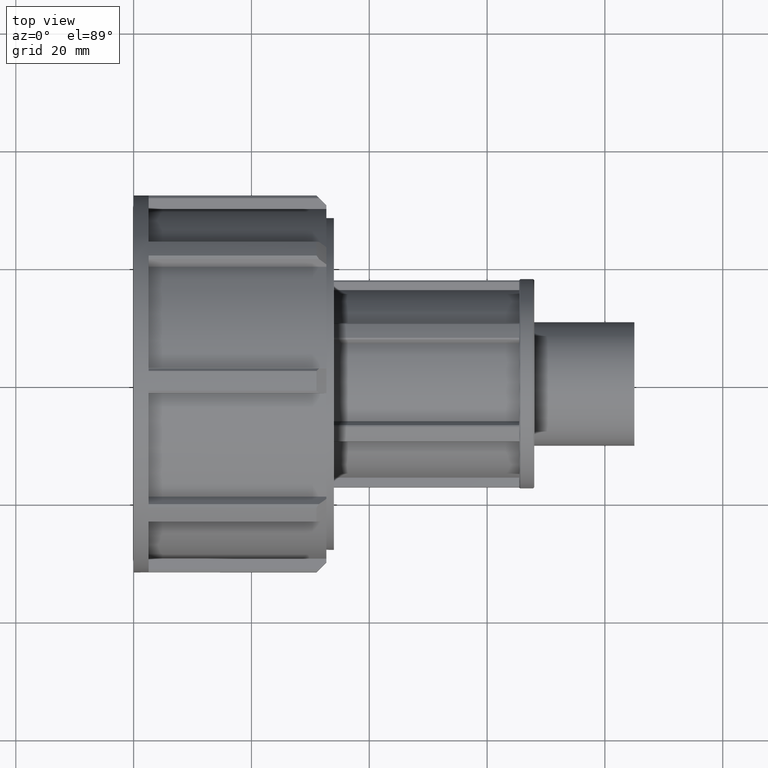
[diagram: clean part render]
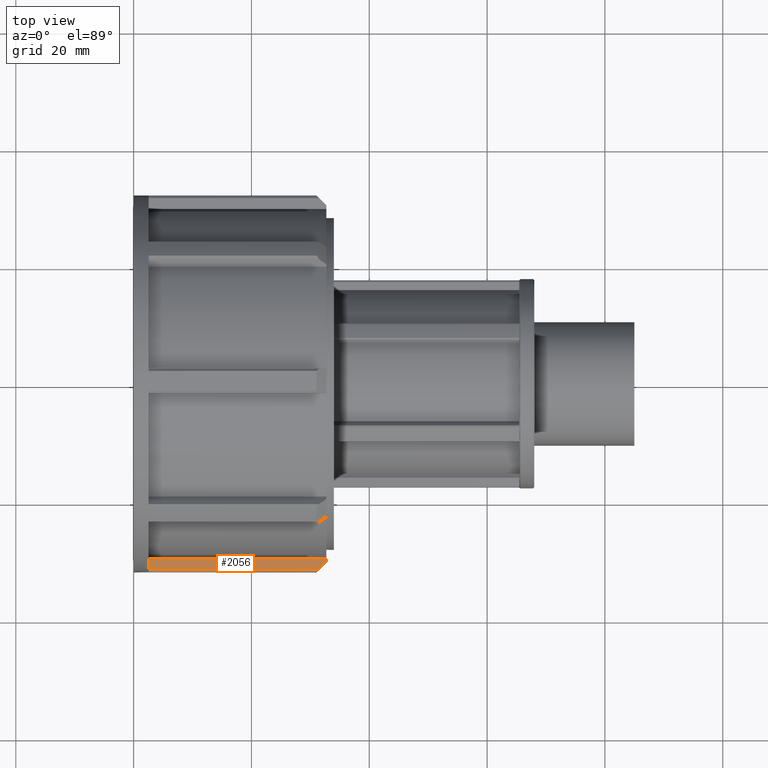
[diagram: same view with one face highlighted and labeled with its STEP entity id]
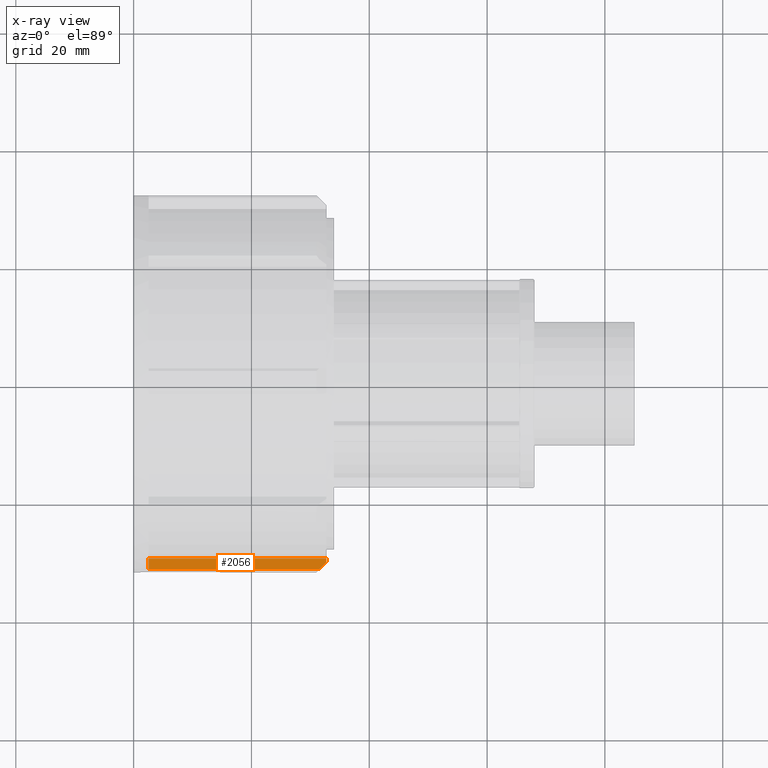
[diagram: x-ray of the same camera — body ghosted, the highlighted face saturated]
A machine part, top view. The second image highlights one B-rep face of the part: STEP entity #2056.
The next image is the same camera in x-ray: the body ghosted, the highlighted face saturated — about 0% of this face is hidden behind the body in this view.
In plain terms, the highlighted planar face has unit normal (0, -0, 1).
Its self-contained STEP definition (entity closure, byte-faithful):
#38=(
BOUNDED_CURVE()
B_SPLINE_CURVE(2,(#3359,#3360,#3361),.UNSPECIFIED.,.F.,.F.)
B_SPLINE_CURVE_WITH_KNOTS((3,3),(0.,0.247470528821489),.UNSPECIFIED.)
CURVE()
GEOMETRIC_REPRESENTATION_ITEM()
RATIONAL_B_SPLINE_CURVE((1.,1.00349970361893,1.00659374737724))
REPRESENTATION_ITEM('')
);
#273=FACE_OUTER_BOUND('',#395,.T.);
#395=EDGE_LOOP('',(#1733,#1734,#1735,#1736,#1737));
#584=LINE('',#3346,#764);
#616=LINE('',#3442,#796);
#617=LINE('',#3444,#797);
#618=LINE('',#3445,#798);
#764=VECTOR('',#2665,28.9167885169777);
#796=VECTOR('',#2729,0.564976230840153);
#797=VECTOR('',#2730,30.175);
#798=VECTOR('',#2731,1.82608224784882);
#960=VERTEX_POINT('',#3341);
#961=VERTEX_POINT('',#3345);
#964=VERTEX_POINT('',#3357);
#988=VERTEX_POINT('',#3441);
#989=VERTEX_POINT('',#3443);
#1222=EDGE_CURVE('',#960,#961,#584,.T.);
#1227=EDGE_CURVE('',#964,#960,#38,.T.);
#1263=EDGE_CURVE('',#988,#964,#616,.T.);
#1264=EDGE_CURVE('',#989,#988,#617,.T.);
#1265=EDGE_CURVE('',#961,#989,#618,.T.);
#1733=ORIENTED_EDGE('',*,*,#1222,.F.);
#1734=ORIENTED_EDGE('',*,*,#1227,.F.);
#1735=ORIENTED_EDGE('',*,*,#1263,.F.);
#1736=ORIENTED_EDGE('',*,*,#1264,.F.);
#1737=ORIENTED_EDGE('',*,*,#1265,.F.);
#1959=PLANE('',#2227);
#2056=ADVANCED_FACE('',(#273),#1959,.T.);
#2227=AXIS2_PLACEMENT_3D('',#3440,#2727,#2728);
#2665=DIRECTION('',(-1.,0.,0.));
#2727=DIRECTION('center_axis',(0.,-2.77555756156289E-16,1.));
#2728=DIRECTION('ref_axis',(0.,1.,2.66453525910038E-16));
#2729=DIRECTION('',(0.,-1.,-2.77555756156289E-16));
#2730=DIRECTION('',(1.,0.,0.));
#2731=DIRECTION('',(0.,1.,2.77555756156289E-16));
#3341=CARTESIAN_POINT('',(31.4667885169777,-31.5122150332084,2.0955));
#3345=CARTESIAN_POINT('',(2.55,-31.5122150332084,2.0955));
#3346=CARTESIAN_POINT('',(1.275,-31.5122150332084,2.09549999999999));
#3357=CARTESIAN_POINT('',(32.725,-30.2511090161997,2.0955));
#3359=CARTESIAN_POINT('Ctrl Pts',(32.725,-30.2511090161997,2.0955));
#3360=CARTESIAN_POINT('Ctrl Pts',(32.1087395683554,-30.8688461978354,2.09549999999999));
#3361=CARTESIAN_POINT('Ctrl Pts',(31.4667885169777,-31.5122150332084,2.0955));
#3440=CARTESIAN_POINT('Origin',(32.725,-31.9313150332084,2.09549999999999));
#3441=CARTESIAN_POINT('',(32.725,-29.6861327853596,2.0955));
#3442=CARTESIAN_POINT('',(32.725,-28.0819244310286,2.0955));
#3443=CARTESIAN_POINT('',(2.55,-29.6861327853596,2.09549999999999));
#3444=CARTESIAN_POINT('',(17.6375,-29.6861327853596,2.0955));
#3445=CARTESIAN_POINT('',(2.55,-1.08565751660419,2.0955));